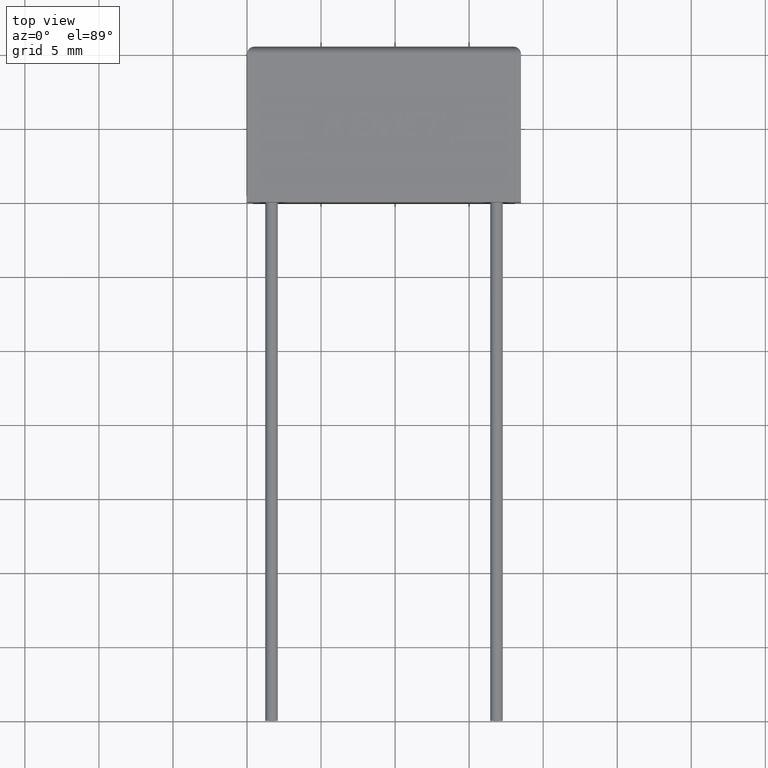
[diagram: clean part render]
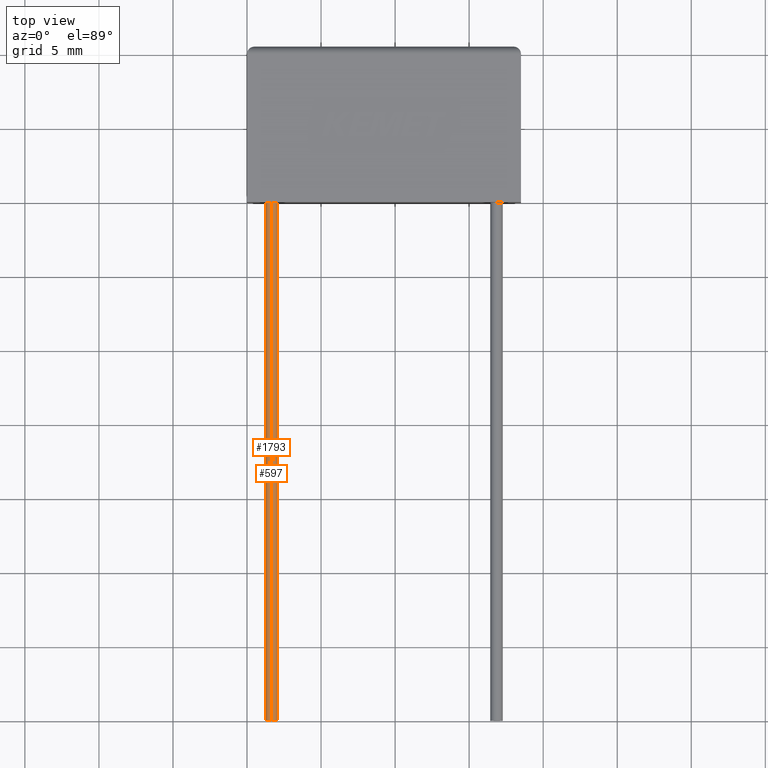
[diagram: same view with one multi-face feature highlighted, each face labeled with its STEP entity id]
A machine part, top view. The highlighted faces form ONE feature: a constant-radius fillet chain: 2 tangent blend faces with common blend radius 0.425 mm. The faces share edges in the B-rep.
Their STEP definitions:
[1] entity #597 (Cylinder):
#6 = CYLINDRICAL_SURFACE ( 'NONE', #2102, 0.4250000000000000400 ) ;
#68 = ORIENTED_EDGE ( 'NONE', *, *, #302, .F. ) ;
#94 = CARTESIAN_POINT ( 'NONE',  ( 1.649999999999999500, -35.00000000000000000, 2.600000000000000100 ) ) ;
#211 = AXIS2_PLACEMENT_3D ( 'NONE', #2213, #1344, #1712 ) ;
#251 = LINE ( 'NONE', #2151, #2371 ) ;
#290 = CARTESIAN_POINT ( 'NONE',  ( 1.649999999999999500, -35.00000000000000000, 3.024999999999999900 ) ) ;
#302 = EDGE_CURVE ( 'NONE', #921, #1993, #251, .T. ) ;
#321 = EDGE_CURVE ( 'NONE', #897, #1993, #1412, .T. ) ;
#389 = DIRECTION ( 'NONE',  ( 0.0000000000000000000, 0.0000000000000000000, 1.000000000000000000 ) ) ;
#597 = ADVANCED_FACE ( 'NONE', ( #746 ), #6, .T. ) ;
#746 = FACE_OUTER_BOUND ( 'NONE', #1585, .T. ) ;
#761 = CARTESIAN_POINT ( 'NONE',  ( 1.649999999999999500, 0.0000000000000000000, 2.174999999999999800 ) ) ;
#896 = CARTESIAN_POINT ( 'NONE',  ( 1.649999999999999500, 0.0000000000000000000, 3.024999999999999900 ) ) ;
#897 = VERTEX_POINT ( 'NONE', #896 ) ;
#921 = VERTEX_POINT ( 'NONE', #1663 ) ;
#963 = AXIS2_PLACEMENT_3D ( 'NONE', #1350, #1545, #389 ) ;
#1282 = CARTESIAN_POINT ( 'NONE',  ( 1.649999999999999500, -35.00000000000000000, 3.024999999999999900 ) ) ;
#1344 = DIRECTION ( 'NONE',  ( 0.0000000000000000000, -1.000000000000000000, 0.0000000000000000000 ) ) ;
#1345 = ORIENTED_EDGE ( 'NONE', *, *, #1538, .T. ) ;
#1350 = CARTESIAN_POINT ( 'NONE',  ( 1.649999999999999500, 0.0000000000000000000, 2.600000000000000100 ) ) ;
#1412 = CIRCLE ( 'NONE', #963, 0.4250000000000000400 ) ;
#1435 = DIRECTION ( 'NONE',  ( 0.0000000000000000000, 0.0000000000000000000, 1.000000000000000000 ) ) ;
#1444 = DIRECTION ( 'NONE',  ( -0.0000000000000000000, 1.000000000000000000, -0.0000000000000000000 ) ) ;
#1538 = EDGE_CURVE ( 'NONE', #2380, #897, #1678, .T. ) ;
#1545 = DIRECTION ( 'NONE',  ( -0.0000000000000000000, -1.000000000000000000, -0.0000000000000000000 ) ) ;
#1585 = EDGE_LOOP ( 'NONE', ( #68, #2424, #1345, #1648 ) ) ;
#1648 = ORIENTED_EDGE ( 'NONE', *, *, #321, .T. ) ;
#1663 = CARTESIAN_POINT ( 'NONE',  ( 1.649999999999999500, -35.00000000000000000, 2.174999999999999800 ) ) ;
#1678 = LINE ( 'NONE', #290, #2196 ) ;
#1685 = EDGE_CURVE ( 'NONE', #2380, #921, #2167, .T. ) ;
#1712 = DIRECTION ( 'NONE',  ( 0.0000000000000000000, 0.0000000000000000000, -1.000000000000000000 ) ) ;
#1993 = VERTEX_POINT ( 'NONE', #761 ) ;
#2102 = AXIS2_PLACEMENT_3D ( 'NONE', #94, #1444, #1435 ) ;
#2151 = CARTESIAN_POINT ( 'NONE',  ( 1.649999999999999500, -35.00000000000000000, 2.174999999999999800 ) ) ;
#2167 = CIRCLE ( 'NONE', #211, 0.4250000000000000400 ) ;
#2196 = VECTOR ( 'NONE', #2201, 1000.000000000000000 ) ;
#2201 = DIRECTION ( 'NONE',  ( -0.0000000000000000000, 1.000000000000000000, -0.0000000000000000000 ) ) ;
#2213 = CARTESIAN_POINT ( 'NONE',  ( 1.649999999999999500, -35.00000000000000000, 2.600000000000000100 ) ) ;
#2295 = DIRECTION ( 'NONE',  ( -0.0000000000000000000, 1.000000000000000000, -0.0000000000000000000 ) ) ;
#2371 = VECTOR ( 'NONE', #2295, 1000.000000000000000 ) ;
#2380 = VERTEX_POINT ( 'NONE', #1282 ) ;
#2424 = ORIENTED_EDGE ( 'NONE', *, *, #1685, .F. ) ;
[2] entity #1793 (Cylinder):
#23 = CIRCLE ( 'NONE', #1543, 0.4250000000000000400 ) ;
#37 = DIRECTION ( 'NONE',  ( 0.0000000000000000000, -1.000000000000000000, 0.0000000000000000000 ) ) ;
#102 = CYLINDRICAL_SURFACE ( 'NONE', #456, 0.4250000000000000400 ) ;
#124 = DIRECTION ( 'NONE',  ( -0.0000000000000000000, 1.000000000000000000, -0.0000000000000000000 ) ) ;
#130 = ORIENTED_EDGE ( 'NONE', *, *, #2292, .T. ) ;
#251 = LINE ( 'NONE', #2151, #2371 ) ;
#262 = CARTESIAN_POINT ( 'NONE',  ( 1.649999999999999500, -35.00000000000000000, 2.600000000000000100 ) ) ;
#290 = CARTESIAN_POINT ( 'NONE',  ( 1.649999999999999500, -35.00000000000000000, 3.024999999999999900 ) ) ;
#302 = EDGE_CURVE ( 'NONE', #921, #1993, #251, .T. ) ;
#434 = ORIENTED_EDGE ( 'NONE', *, *, #302, .T. ) ;
#456 = AXIS2_PLACEMENT_3D ( 'NONE', #2238, #124, #1295 ) ;
#504 = AXIS2_PLACEMENT_3D ( 'NONE', #1873, #2079, #1504 ) ;
#761 = CARTESIAN_POINT ( 'NONE',  ( 1.649999999999999500, 0.0000000000000000000, 2.174999999999999800 ) ) ;
#896 = CARTESIAN_POINT ( 'NONE',  ( 1.649999999999999500, 0.0000000000000000000, 3.024999999999999900 ) ) ;
#897 = VERTEX_POINT ( 'NONE', #896 ) ;
#899 = CIRCLE ( 'NONE', #504, 0.4250000000000000400 ) ;
#921 = VERTEX_POINT ( 'NONE', #1663 ) ;
#1193 = ORIENTED_EDGE ( 'NONE', *, *, #1538, .F. ) ;
#1282 = CARTESIAN_POINT ( 'NONE',  ( 1.649999999999999500, -35.00000000000000000, 3.024999999999999900 ) ) ;
#1295 = DIRECTION ( 'NONE',  ( 0.0000000000000000000, 0.0000000000000000000, 1.000000000000000000 ) ) ;
#1415 = EDGE_CURVE ( 'NONE', #921, #2380, #23, .T. ) ;
#1504 = DIRECTION ( 'NONE',  ( 0.0000000000000000000, 0.0000000000000000000, 1.000000000000000000 ) ) ;
#1538 = EDGE_CURVE ( 'NONE', #2380, #897, #1678, .T. ) ;
#1543 = AXIS2_PLACEMENT_3D ( 'NONE', #262, #37, #1986 ) ;
#1549 = EDGE_LOOP ( 'NONE', ( #1893, #434, #130, #1193 ) ) ;
#1663 = CARTESIAN_POINT ( 'NONE',  ( 1.649999999999999500, -35.00000000000000000, 2.174999999999999800 ) ) ;
#1678 = LINE ( 'NONE', #290, #2196 ) ;
#1793 = ADVANCED_FACE ( 'NONE', ( #2387 ), #102, .T. ) ;
#1873 = CARTESIAN_POINT ( 'NONE',  ( 1.649999999999999500, 0.0000000000000000000, 2.600000000000000100 ) ) ;
#1893 = ORIENTED_EDGE ( 'NONE', *, *, #1415, .F. ) ;
#1986 = DIRECTION ( 'NONE',  ( 0.0000000000000000000, 0.0000000000000000000, -1.000000000000000000 ) ) ;
#1993 = VERTEX_POINT ( 'NONE', #761 ) ;
#2079 = DIRECTION ( 'NONE',  ( -0.0000000000000000000, -1.000000000000000000, -0.0000000000000000000 ) ) ;
#2151 = CARTESIAN_POINT ( 'NONE',  ( 1.649999999999999500, -35.00000000000000000, 2.174999999999999800 ) ) ;
#2196 = VECTOR ( 'NONE', #2201, 1000.000000000000000 ) ;
#2201 = DIRECTION ( 'NONE',  ( -0.0000000000000000000, 1.000000000000000000, -0.0000000000000000000 ) ) ;
#2238 = CARTESIAN_POINT ( 'NONE',  ( 1.649999999999999500, -35.00000000000000000, 2.600000000000000100 ) ) ;
#2292 = EDGE_CURVE ( 'NONE', #1993, #897, #899, .T. ) ;
#2295 = DIRECTION ( 'NONE',  ( -0.0000000000000000000, 1.000000000000000000, -0.0000000000000000000 ) ) ;
#2371 = VECTOR ( 'NONE', #2295, 1000.000000000000000 ) ;
#2380 = VERTEX_POINT ( 'NONE', #1282 ) ;
#2387 = FACE_OUTER_BOUND ( 'NONE', #1549, .T. ) ;